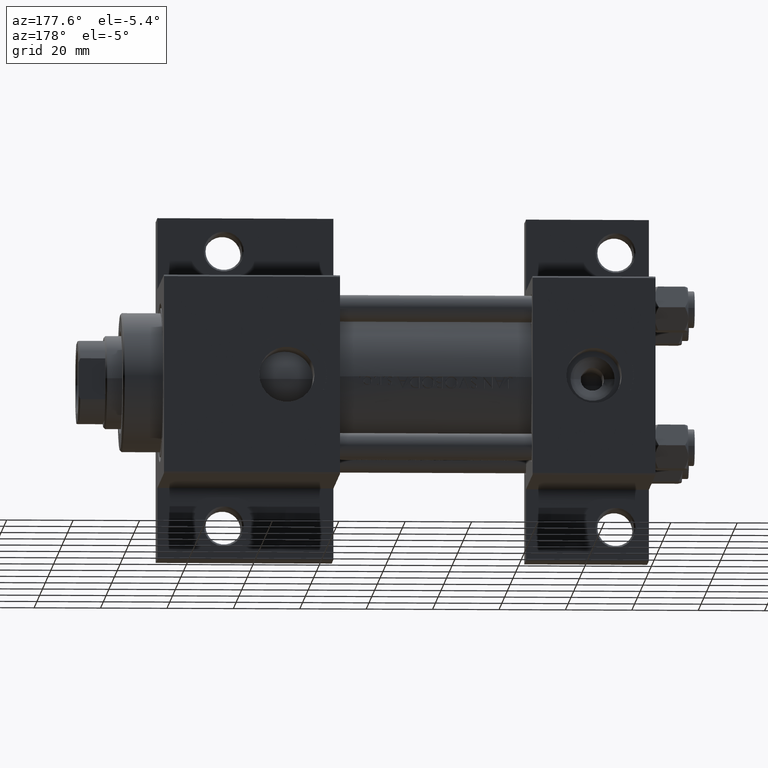
[diagram: clean part render]
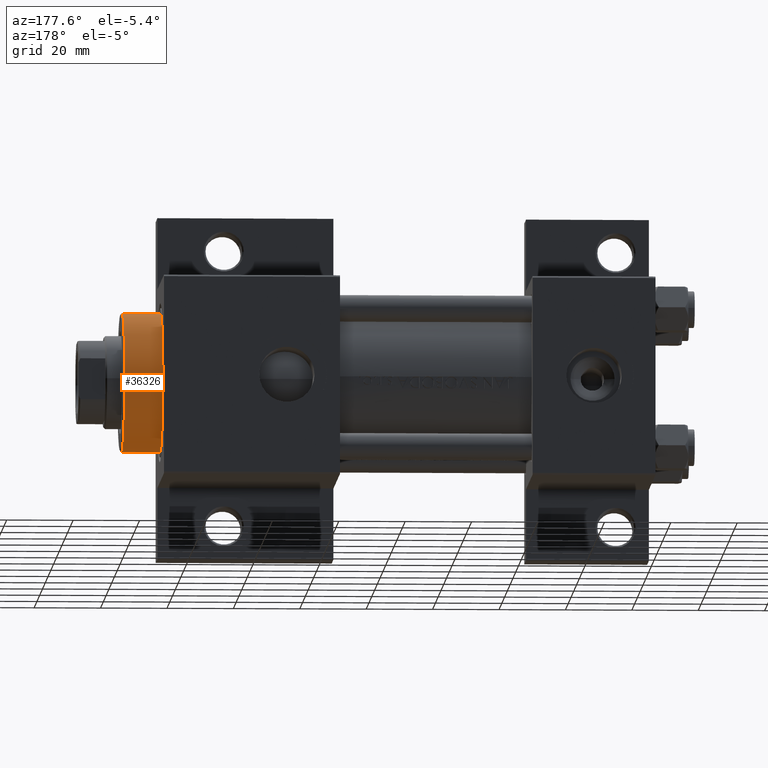
[diagram: same view with one face highlighted and labeled with its STEP entity id]
A machine part, auxiliary view. The second image highlights one B-rep face of the part: STEP entity #36326.
In plain terms, the highlighted cylindrical surface (partial cylindrical patch) has radius 21 mm, axis along (-1, -0, 0).
Its self-contained STEP definition (entity closure, byte-faithful):
#8 = CARTESIAN_POINT ( 'NONE',  ( -21.00000000000000000, 0.000000000000000000, 40.19999999999998863 ) ) ;
#351 = ORIENTED_EDGE ( 'NONE', *, *, #41120, .T. ) ;
#583 = CARTESIAN_POINT ( 'NONE',  ( 21.00000000000000000, 2.571758278209441661E-15, 40.70000000000000284 ) ) ;
#663 = AXIS2_PLACEMENT_3D ( 'NONE', #10391, #36382, #3664 ) ;
#890 = VERTEX_POINT ( 'NONE', #8 ) ;
#2027 = CARTESIAN_POINT ( 'NONE',  ( 21.00000000000000000, 2.571758278209441661E-15, 28.69999999999999929 ) ) ;
#3117 = DIRECTION ( 'NONE',  ( 0.000000000000000000, 0.000000000000000000, 1.000000000000000000 ) ) ;
#3664 = DIRECTION ( 'NONE',  ( 1.000000000000000000, 0.000000000000000000, 0.000000000000000000 ) ) ;
#5390 = LINE ( 'NONE', #41972, #39900 ) ;
#5828 = AXIS2_PLACEMENT_3D ( 'NONE', #24983, #3117, #40640 ) ;
#6313 = FACE_OUTER_BOUND ( 'NONE', #34517, .T. ) ;
#8143 = AXIS2_PLACEMENT_3D ( 'NONE', #21199, #31337, #13747 ) ;
#8279 = VECTOR ( 'NONE', #34260, 1000.000000000000000 ) ;
#9926 = CYLINDRICAL_SURFACE ( 'NONE', #8143, 21.00000000000000000 ) ;
#10391 = CARTESIAN_POINT ( 'NONE',  ( 0.000000000000000000, 0.000000000000000000, 40.19999999999998863 ) ) ;
#12106 = DIRECTION ( 'NONE',  ( -0.000000000000000000, -0.000000000000000000, -1.000000000000000000 ) ) ;
#12280 = VERTEX_POINT ( 'NONE', #45975 ) ;
#13747 = DIRECTION ( 'NONE',  ( -1.000000000000000000, 0.000000000000000000, 0.000000000000000000 ) ) ;
#14544 = CARTESIAN_POINT ( 'NONE',  ( 21.00000000000000000, 2.571758278209441661E-15, 40.19999999999998863 ) ) ;
#14686 = ORIENTED_EDGE ( 'NONE', *, *, #43564, .F. ) ;
#19550 = LINE ( 'NONE', #583, #8279 ) ;
#20388 = CIRCLE ( 'NONE', #5828, 21.00000000000000000 ) ;
#21199 = CARTESIAN_POINT ( 'NONE',  ( 0.000000000000000000, 0.000000000000000000, 40.70000000000000284 ) ) ;
#24848 = EDGE_CURVE ( 'NONE', #26943, #12280, #20388, .T. ) ;
#24983 = CARTESIAN_POINT ( 'NONE',  ( 0.000000000000000000, 0.000000000000000000, 28.69999999999999929 ) ) ;
#26943 = VERTEX_POINT ( 'NONE', #2027 ) ;
#29843 = CIRCLE ( 'NONE', #663, 21.00000000000000000 ) ;
#31337 = DIRECTION ( 'NONE',  ( -0.000000000000000000, -0.000000000000000000, -1.000000000000000000 ) ) ;
#34260 = DIRECTION ( 'NONE',  ( -0.000000000000000000, -0.000000000000000000, -1.000000000000000000 ) ) ;
#34517 = EDGE_LOOP ( 'NONE', ( #44635, #351, #35195, #14686 ) ) ;
#35195 = ORIENTED_EDGE ( 'NONE', *, *, #24848, .T. ) ;
#36326 = ADVANCED_FACE ( 'NONE', ( #6313 ), #9926, .T. ) ;
#36382 = DIRECTION ( 'NONE',  ( 0.000000000000000000, 0.000000000000000000, -1.000000000000000000 ) ) ;
#39900 = VECTOR ( 'NONE', #12106, 1000.000000000000000 ) ;
#40640 = DIRECTION ( 'NONE',  ( 1.000000000000000000, 0.000000000000000000, 0.000000000000000000 ) ) ;
#41120 = EDGE_CURVE ( 'NONE', #44334, #26943, #19550, .T. ) ;
#41972 = CARTESIAN_POINT ( 'NONE',  ( -21.00000000000000000, 0.000000000000000000, 40.70000000000000284 ) ) ;
#43564 = EDGE_CURVE ( 'NONE', #890, #12280, #5390, .T. ) ;
#44334 = VERTEX_POINT ( 'NONE', #14544 ) ;
#44635 = ORIENTED_EDGE ( 'NONE', *, *, #46886, .T. ) ;
#45975 = CARTESIAN_POINT ( 'NONE',  ( -21.00000000000000000, 0.000000000000000000, 28.69999999999999929 ) ) ;
#46886 = EDGE_CURVE ( 'NONE', #890, #44334, #29843, .T. ) ;